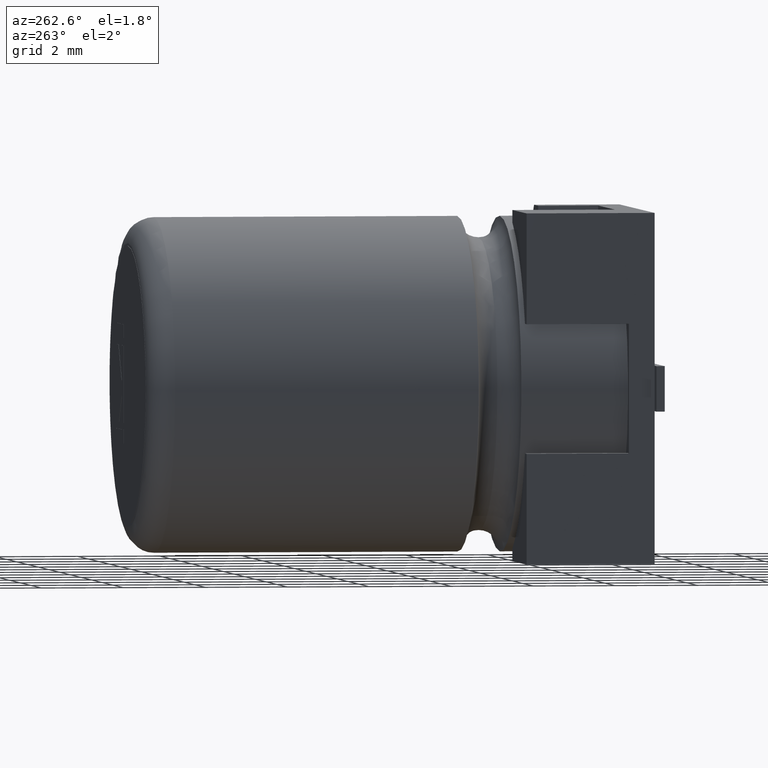
[diagram: clean part render]
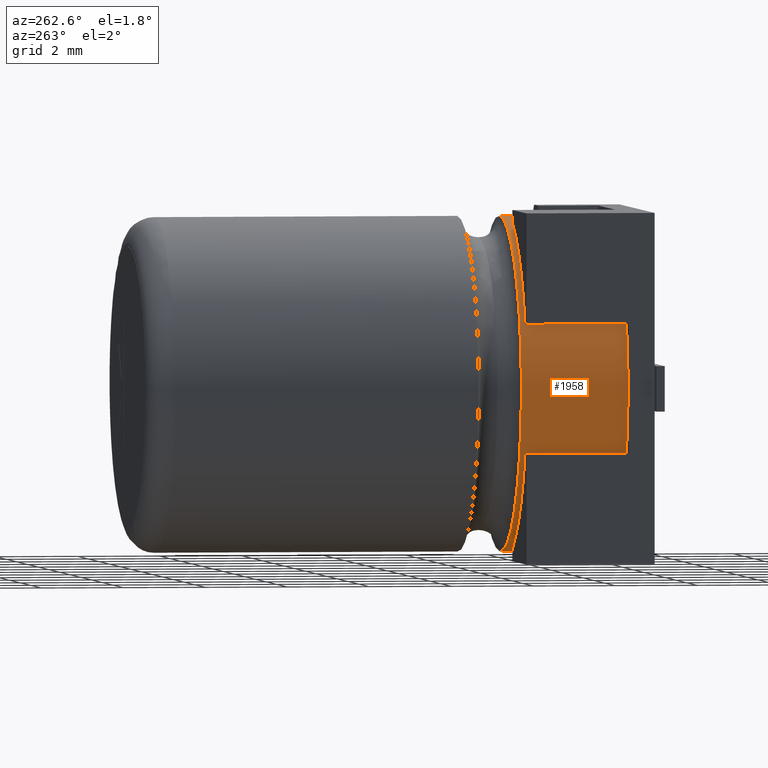
[diagram: same view with one face highlighted and labeled with its STEP entity id]
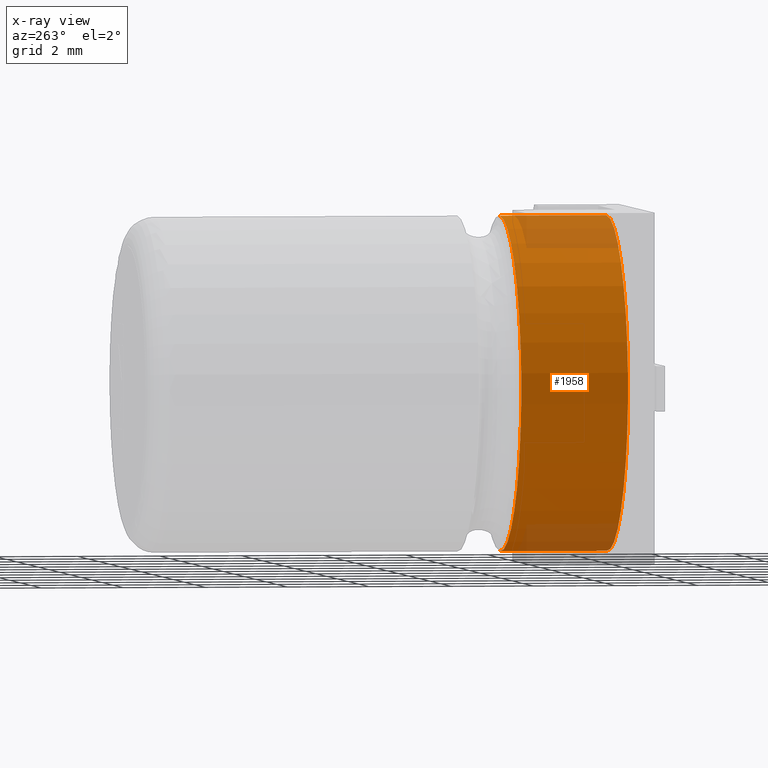
[diagram: x-ray of the same camera — body ghosted, the highlighted face saturated]
A machine part, auxiliary view. The second image highlights one B-rep face of the part: STEP entity #1958.
The next image is the same camera in x-ray: the body ghosted, the highlighted face saturated — about 15% of this face is hidden behind the body in this view.
In plain terms, the highlighted cylindrical surface (partial cylindrical patch) has radius 4.0626 mm, axis along (-0, -1, -0).
Its self-contained STEP definition (entity closure, byte-faithful):
#50 = CARTESIAN_POINT ( 'NONE',  ( 4.250000000000000888, 0.6250000000000001110, -0.1874250000000032279 ) ) ;
#258 = DIRECTION ( 'NONE',  ( -0.000000000000000000, -1.000000000000000000, -0.000000000000000000 ) ) ;
#320 = AXIS2_PLACEMENT_3D ( 'NONE', #1030, #2873, #1795 ) ;
#349 = VERTEX_POINT ( 'NONE', #50 ) ;
#418 = EDGE_LOOP ( 'NONE', ( #1936, #2293, #3344, #2976 ) ) ;
#469 = CARTESIAN_POINT ( 'NONE',  ( 4.250000000000000000, 3.228750000000000675, -8.312575000000000713 ) ) ;
#732 = EDGE_CURVE ( 'NONE', #2688, #3002, #3322, .T. ) ;
#854 = DIRECTION ( 'NONE',  ( -0.000000000000000000, -1.000000000000000000, -0.000000000000000000 ) ) ;
#943 = CARTESIAN_POINT ( 'NONE',  ( 4.250000000000000000, 12.30000000000000249, -8.312575000000000713 ) ) ;
#1009 = CARTESIAN_POINT ( 'NONE',  ( 4.250000000000000000, 12.30000000000000249, -4.250000000000001776 ) ) ;
#1022 = AXIS2_PLACEMENT_3D ( 'NONE', #1009, #258, #1808 ) ;
#1030 = CARTESIAN_POINT ( 'NONE',  ( 4.250000000000000000, 3.228750000000000675, -4.250000000000001776 ) ) ;
#1031 = CARTESIAN_POINT ( 'NONE',  ( 4.250000000000000888, 3.228750000000000675, -0.1874250000000032279 ) ) ;
#1256 = VERTEX_POINT ( 'NONE', #1031 ) ;
#1351 = VECTOR ( 'NONE', #854, 1000.000000000000000 ) ;
#1353 = CARTESIAN_POINT ( 'NONE',  ( 4.250000000000000888, 12.30000000000000249, -0.1874250000000032279 ) ) ;
#1414 = CARTESIAN_POINT ( 'NONE',  ( 4.250000000000000000, 0.6250000000000001110, -4.250000000000001776 ) ) ;
#1701 = DIRECTION ( 'NONE',  ( 0.000000000000000000, 1.000000000000000000, 0.000000000000000000 ) ) ;
#1795 = DIRECTION ( 'NONE',  ( 0.000000000000000000, 0.000000000000000000, -1.000000000000000000 ) ) ;
#1808 = DIRECTION ( 'NONE',  ( 0.000000000000000000, 0.000000000000000000, -1.000000000000000000 ) ) ;
#1817 = CIRCLE ( 'NONE', #2431, 4.062574999999998937 ) ;
#1850 = LINE ( 'NONE', #1353, #1351 ) ;
#1854 = EDGE_CURVE ( 'NONE', #3002, #349, #1817, .T. ) ;
#1859 = VECTOR ( 'NONE', #1889, 1000.000000000000000 ) ;
#1889 = DIRECTION ( 'NONE',  ( -0.000000000000000000, -1.000000000000000000, -0.000000000000000000 ) ) ;
#1936 = ORIENTED_EDGE ( 'NONE', *, *, #2913, .F. ) ;
#1958 = ADVANCED_FACE ( 'NONE', ( #3120 ), #2573, .T. ) ;
#2293 = ORIENTED_EDGE ( 'NONE', *, *, #2636, .T. ) ;
#2431 = AXIS2_PLACEMENT_3D ( 'NONE', #1414, #1701, #2503 ) ;
#2503 = DIRECTION ( 'NONE',  ( 0.000000000000000000, 0.000000000000000000, 1.000000000000000000 ) ) ;
#2573 = CYLINDRICAL_SURFACE ( 'NONE', #1022, 4.062574999999998937 ) ;
#2636 = EDGE_CURVE ( 'NONE', #1256, #2688, #3237, .T. ) ;
#2688 = VERTEX_POINT ( 'NONE', #469 ) ;
#2873 = DIRECTION ( 'NONE',  ( -0.000000000000000000, -1.000000000000000000, -0.000000000000000000 ) ) ;
#2913 = EDGE_CURVE ( 'NONE', #1256, #349, #1850, .T. ) ;
#2976 = ORIENTED_EDGE ( 'NONE', *, *, #1854, .T. ) ;
#3002 = VERTEX_POINT ( 'NONE', #3253 ) ;
#3120 = FACE_OUTER_BOUND ( 'NONE', #418, .T. ) ;
#3237 = CIRCLE ( 'NONE', #320, 4.062574999999998937 ) ;
#3253 = CARTESIAN_POINT ( 'NONE',  ( 4.250000000000000000, 0.6250000000000001110, -8.312575000000000713 ) ) ;
#3322 = LINE ( 'NONE', #943, #1859 ) ;
#3344 = ORIENTED_EDGE ( 'NONE', *, *, #732, .T. ) ;